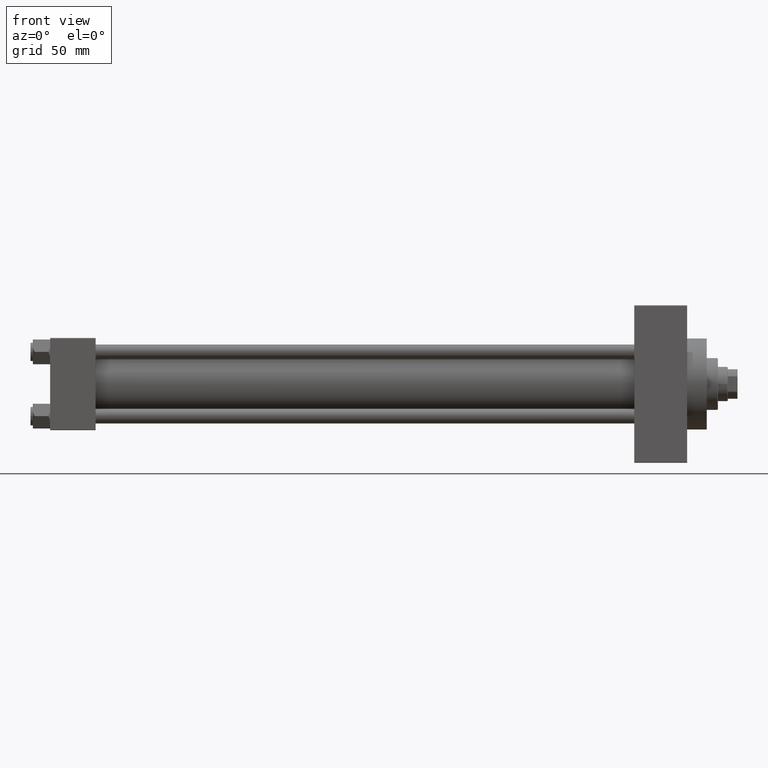
[diagram: clean part render]
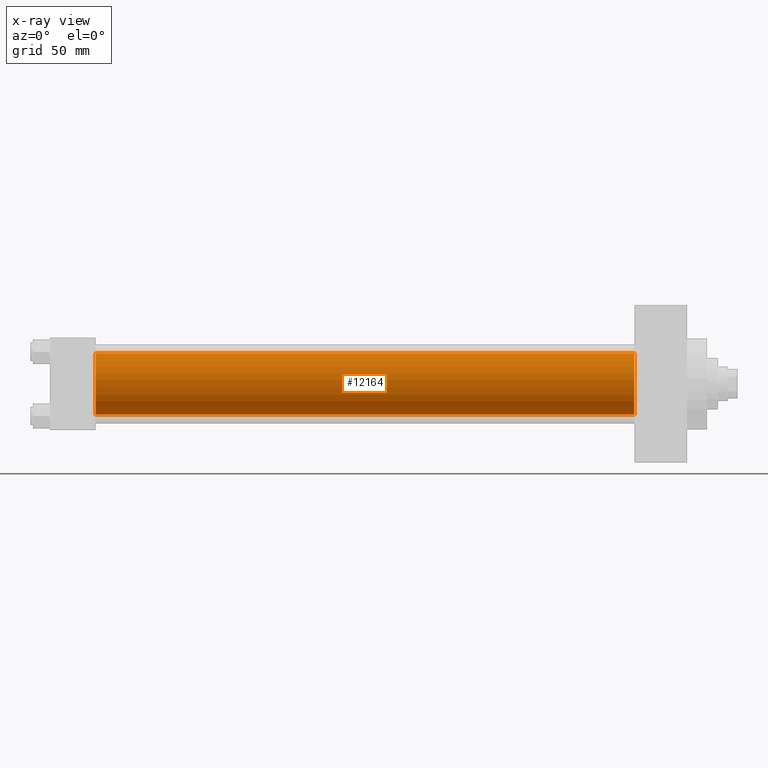
[diagram: x-ray — body ghosted, one internal face saturated and labeled with its STEP entity id]
A machine part, front view, then the same camera in x-ray: the body is ghosted and one INTERNAL B-rep face — a face not visible from any outside direction — is saturated and labeled: STEP entity #12164.
In plain terms, the highlighted cylindrical surface (edge-blend (fillet) strip) has radius 25 mm, axis along (-1, -0, -0).
Its self-contained STEP definition (entity closure, byte-faithful):
#1950 = CARTESIAN_POINT ( 'NONE',  ( 475.0000000000000000, 4.595317839031724996E-16, -25.00000000000000000 ) ) ;
#3093 = EDGE_CURVE ( 'NONE', #18369, #42670, #37163, .T. ) ;
#4628 = LINE ( 'NONE', #23681, #49063 ) ;
#7400 = CIRCLE ( 'NONE', #45003, 25.00000000000000000 ) ;
#8609 = ORIENTED_EDGE ( 'NONE', *, *, #48321, .F. ) ;
#10780 = ORIENTED_EDGE ( 'NONE', *, *, #3093, .F. ) ;
#11070 = EDGE_CURVE ( 'NONE', #18369, #33674, #19908, .T. ) ;
#12164 = ADVANCED_FACE ( 'NONE', ( #13277 ), #16786, .F. ) ;
#12299 = DIRECTION ( 'NONE',  ( 0.000000000000000000, 0.000000000000000000, -1.000000000000000000 ) ) ;
#13052 = DIRECTION ( 'NONE',  ( 1.000000000000000000, 0.000000000000000000, 0.000000000000000000 ) ) ;
#13277 = FACE_OUTER_BOUND ( 'NONE', #19616, .T. ) ;
#14382 = CARTESIAN_POINT ( 'NONE',  ( 475.0000000000000000, -2.602085213965210642E-15, 25.00000000000000000 ) ) ;
#14799 = CARTESIAN_POINT ( 'NONE',  ( 475.0000000000000000, -2.602085213965210642E-15, 0.000000000000000000 ) ) ;
#16053 = VERTEX_POINT ( 'NONE', #31773 ) ;
#16786 = CYLINDRICAL_SURFACE ( 'NONE', #20621, 25.00000000000000000 ) ;
#18369 = VERTEX_POINT ( 'NONE', #32634 ) ;
#19616 = EDGE_LOOP ( 'NONE', ( #33632, #40692, #8609, #10780 ) ) ;
#19908 = CIRCLE ( 'NONE', #26309, 25.00000000000000000 ) ;
#20621 = AXIS2_PLACEMENT_3D ( 'NONE', #47066, #32050, #31797 ) ;
#23681 = CARTESIAN_POINT ( 'NONE',  ( 475.0000000000000000, 4.595317839031724996E-16, -25.00000000000000000 ) ) ;
#26075 = DIRECTION ( 'NONE',  ( 1.000000000000000000, 0.000000000000000000, 0.000000000000000000 ) ) ;
#26309 = AXIS2_PLACEMENT_3D ( 'NONE', #14799, #26075, #30076 ) ;
#26947 = DIRECTION ( 'NONE',  ( -1.000000000000000000, -0.000000000000000000, -0.000000000000000000 ) ) ;
#30076 = DIRECTION ( 'NONE',  ( 0.000000000000000000, 0.000000000000000000, -1.000000000000000000 ) ) ;
#31773 = CARTESIAN_POINT ( 'NONE',  ( 37.00000000000000000, 4.595317839031724996E-16, -25.00000000000000000 ) ) ;
#31797 = DIRECTION ( 'NONE',  ( 0.000000000000000000, 0.000000000000000000, 1.000000000000000000 ) ) ;
#32050 = DIRECTION ( 'NONE',  ( -1.000000000000000000, -0.000000000000000000, -0.000000000000000000 ) ) ;
#32080 = CARTESIAN_POINT ( 'NONE',  ( 37.00000000000000000, -2.602085213965210642E-15, 0.000000000000000000 ) ) ;
#32634 = CARTESIAN_POINT ( 'NONE',  ( 475.0000000000000000, -2.602085213965210642E-15, 25.00000000000000000 ) ) ;
#33632 = ORIENTED_EDGE ( 'NONE', *, *, #11070, .T. ) ;
#33674 = VERTEX_POINT ( 'NONE', #1950 ) ;
#36766 = CARTESIAN_POINT ( 'NONE',  ( 37.00000000000000000, -2.602085213965210642E-15, 25.00000000000000000 ) ) ;
#37163 = LINE ( 'NONE', #14382, #49157 ) ;
#39646 = EDGE_CURVE ( 'NONE', #33674, #16053, #4628, .T. ) ;
#40692 = ORIENTED_EDGE ( 'NONE', *, *, #39646, .T. ) ;
#42670 = VERTEX_POINT ( 'NONE', #36766 ) ;
#45003 = AXIS2_PLACEMENT_3D ( 'NONE', #32080, #13052, #12299 ) ;
#47066 = CARTESIAN_POINT ( 'NONE',  ( 475.0000000000000000, -2.602085213965210642E-15, 0.000000000000000000 ) ) ;
#48321 = EDGE_CURVE ( 'NONE', #42670, #16053, #7400, .T. ) ;
#48917 = DIRECTION ( 'NONE',  ( -1.000000000000000000, -0.000000000000000000, -0.000000000000000000 ) ) ;
#49063 = VECTOR ( 'NONE', #26947, 1000.000000000000000 ) ;
#49157 = VECTOR ( 'NONE', #48917, 1000.000000000000000 ) ;